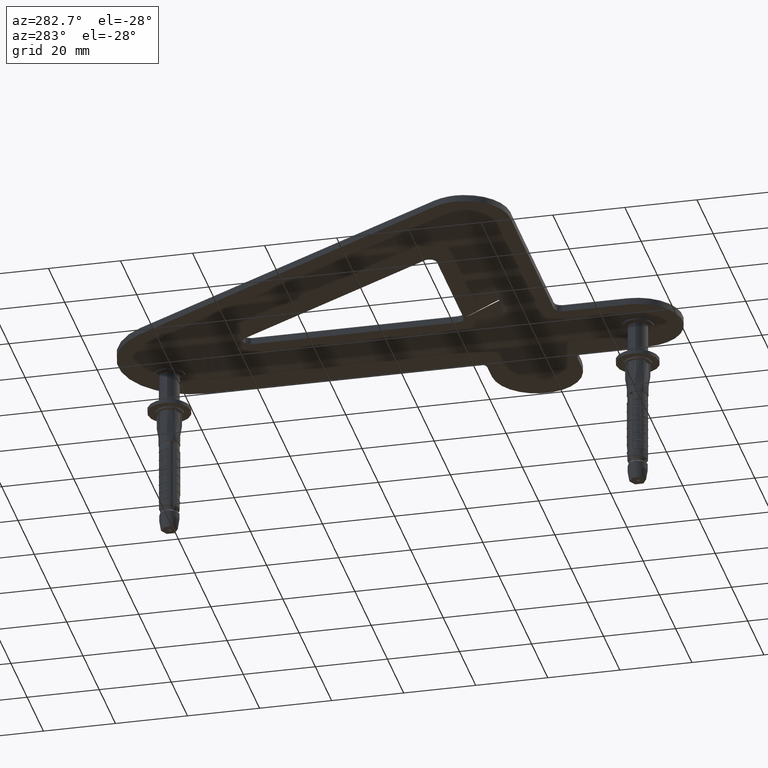
[diagram: clean part render]
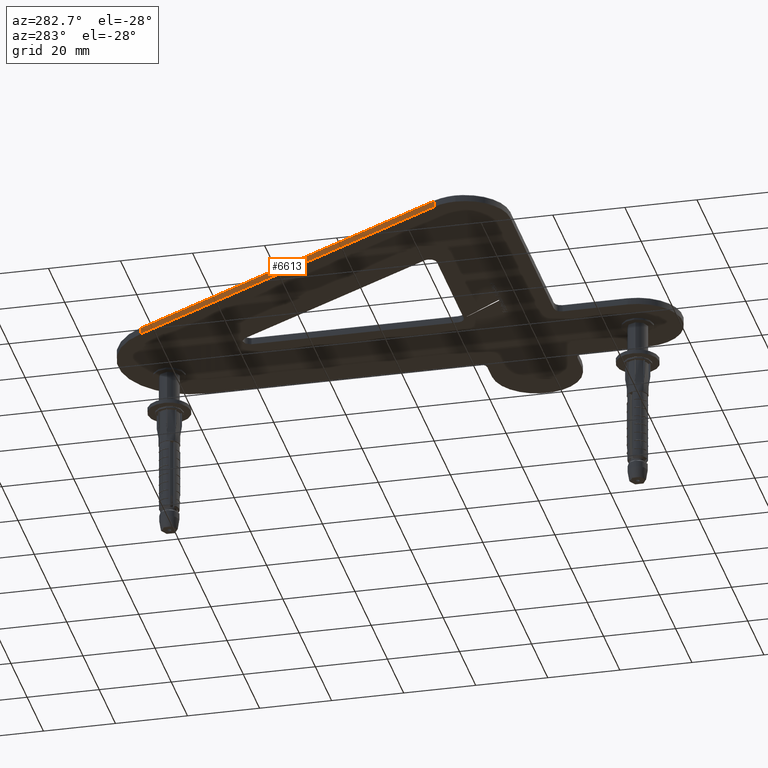
[diagram: same view with one face highlighted and labeled with its STEP entity id]
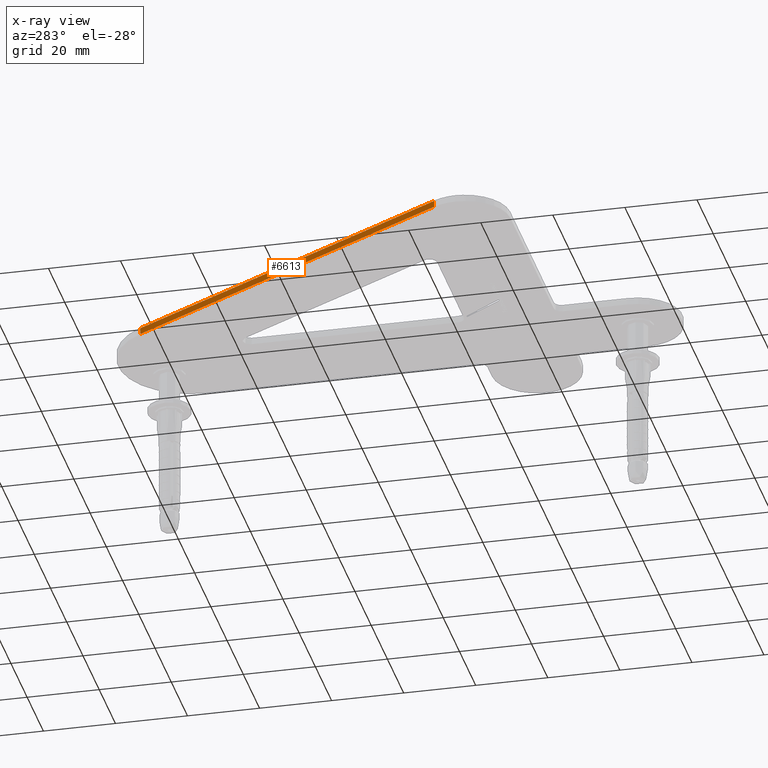
[diagram: x-ray of the same camera — body ghosted, the highlighted face saturated]
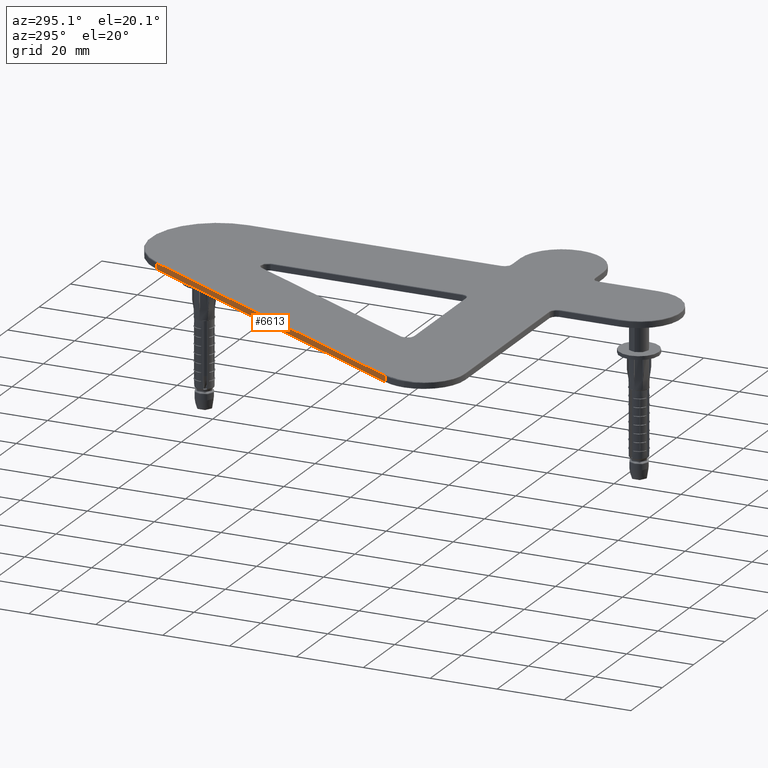
[diagram: same view with one face highlighted and labeled with its STEP entity id]
A machine part, auxiliary view. The second image highlights one B-rep face of the part: STEP entity #6613.
The next image is the same camera in x-ray: the body ghosted, the highlighted face saturated — about 0% of this face is hidden behind the body in this view.
A second angle (auxiliary view) of the same face is appended — the face is thin or edge-on in the first view.
In plain terms, the highlighted planar face has unit normal (0.866, -0.5, 0).
Its self-contained STEP definition (entity closure, byte-faithful):
#523 = CARTESIAN_POINT ( 'NONE',  ( -24.82050807568876749, 145.0000000000000568, 2.000000000000000000 ) ) ;
#1875 = CARTESIAN_POINT ( 'NONE',  ( -24.82050807568873552, 145.0000000000001137, 1.750000000000000000 ) ) ;
#1964 = CARTESIAN_POINT ( 'NONE',  ( -24.82050807568876749, 145.0000000000000568, 2.000000000000000000 ) ) ;
#3553 = DIRECTION ( 'NONE',  ( 0.8660254037844382635, -0.5000000000000008882, 0.000000000000000000 ) ) ;
#3611 = CARTESIAN_POINT ( 'NONE',  ( -78.94709581221633243, 51.25000000000000711, 2.000000000000000000 ) ) ;
#4534 = EDGE_CURVE ( 'NONE', #24995, #8113, #5040, .T. ) ;
#4636 = CARTESIAN_POINT ( 'NONE',  ( -24.82050807568876749, 145.0000000000000568, 0.000000000000000000 ) ) ;
#5040 = LINE ( 'NONE', #9565, #26869 ) ;
#5226 = VECTOR ( 'NONE', #17651, 1000.000000000000000 ) ;
#6533 = VECTOR ( 'NONE', #32446, 999.9999999999998863 ) ;
#6613 = ADVANCED_FACE ( 'NONE', ( #15461 ), #12844, .F. ) ;
#8113 = VERTEX_POINT ( 'NONE', #9696 ) ;
#8768 = CARTESIAN_POINT ( 'NONE',  ( -24.82050807568876749, 145.0000000000000568, 1.750000000000000000 ) ) ;
#9565 = CARTESIAN_POINT ( 'NONE',  ( -24.82050807568876749, 145.0000000000000568, 0.000000000000000000 ) ) ;
#9696 = CARTESIAN_POINT ( 'NONE',  ( -78.94709581221633243, 51.25000000000000711, 0.000000000000000000 ) ) ;
#12126 = EDGE_CURVE ( 'NONE', #20287, #24995, #17625, .T. ) ;
#12844 = PLANE ( 'NONE',  #35408 ) ;
#14635 = LINE ( 'NONE', #1875, #6533 ) ;
#15461 = FACE_OUTER_BOUND ( 'NONE', #29854, .T. ) ;
#16202 = DIRECTION ( 'NONE',  ( -0.000000000000000000, -0.000000000000000000, -1.000000000000000000 ) ) ;
#17625 = LINE ( 'NONE', #1964, #5226 ) ;
#17651 = DIRECTION ( 'NONE',  ( -0.000000000000000000, -0.000000000000000000, -1.000000000000000000 ) ) ;
#18287 = CARTESIAN_POINT ( 'NONE',  ( -78.94709581221633243, 51.25000000000000711, 1.750000000000000000 ) ) ;
#19484 = EDGE_CURVE ( 'NONE', #28989, #20287, #14635, .T. ) ;
#20287 = VERTEX_POINT ( 'NONE', #8768 ) ;
#24995 = VERTEX_POINT ( 'NONE', #4636 ) ;
#26332 = EDGE_CURVE ( 'NONE', #28989, #8113, #31044, .T. ) ;
#26869 = VECTOR ( 'NONE', #30333, 1000.000000000000227 ) ;
#28819 = ORIENTED_EDGE ( 'NONE', *, *, #12126, .T. ) ;
#28989 = VERTEX_POINT ( 'NONE', #18287 ) ;
#29854 = EDGE_LOOP ( 'NONE', ( #32964, #32300, #28819, #34373 ) ) ;
#30333 = DIRECTION ( 'NONE',  ( -0.5000000000000007772, -0.8660254037844381525, 0.000000000000000000 ) ) ;
#31044 = LINE ( 'NONE', #3611, #35816 ) ;
#32300 = ORIENTED_EDGE ( 'NONE', *, *, #19484, .T. ) ;
#32446 = DIRECTION ( 'NONE',  ( 0.5000000000000008882, 0.8660254037844382635, -0.000000000000000000 ) ) ;
#32964 = ORIENTED_EDGE ( 'NONE', *, *, #26332, .F. ) ;
#34000 = DIRECTION ( 'NONE',  ( 0.5000000000000007772, 0.8660254037844381525, 0.000000000000000000 ) ) ;
#34373 = ORIENTED_EDGE ( 'NONE', *, *, #4534, .T. ) ;
#35408 = AXIS2_PLACEMENT_3D ( 'NONE', #523, #3553, #34000 ) ;
#35816 = VECTOR ( 'NONE', #16202, 1000.000000000000000 ) ;